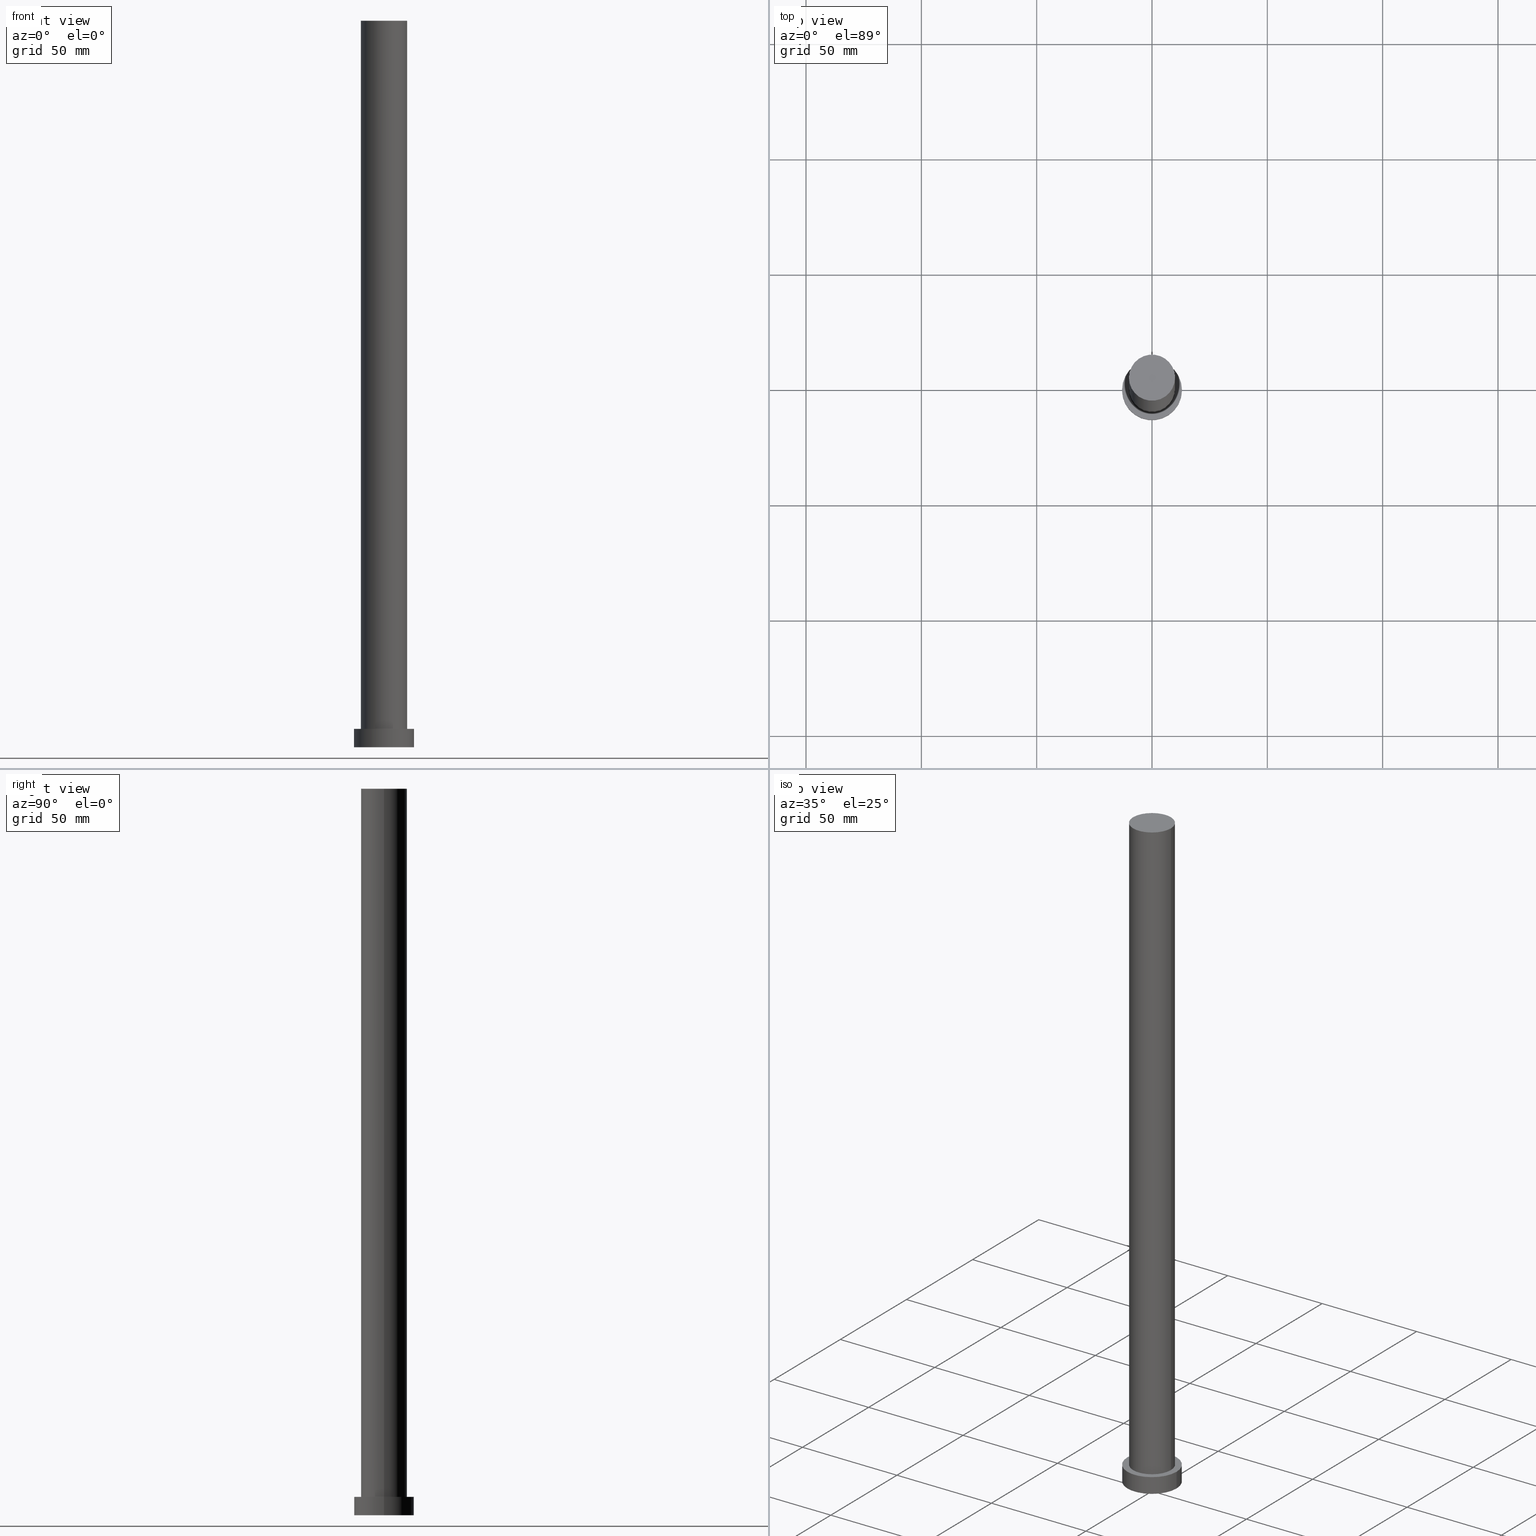
[diagram: canonical four-view strip — front | top / right | iso, engineering-drawing reading convention]
A machine part, canonical four-view strip (front | top / right | iso — engineering-drawing reading convention). The complete STEP part file that produces these views, byte-faithful:
ISO-10303-21;
HEADER;
FILE_DESCRIPTION (( 'STEP AP203' ),
    '1' );
FILE_NAME ('623d.STEP',
    '2023-02-12T10:32:31',
    ( '' ),
    ( '' ),
    'SwSTEP 2.0',
    'SolidWorks 2019',
    '' );
FILE_SCHEMA (( 'CONFIG_CONTROL_DESIGN' ));
ENDSEC;

DATA;
#1 = CARTESIAN_POINT ( 'NONE',  ( 13.00000000000000178, 1.592040838891559293E-15, 8.000000000000000000 ) ) ;
#2 = ORIENTED_EDGE ( 'NONE', *, *, #115, .T. ) ;
#3 = APPROVAL ( #233, 'NEUR�EN�' ) ;
#4 = CARTESIAN_POINT ( 'NONE',  ( 13.00000000000000178, 1.592040838891559293E-15, 0.000000000000000000 ) ) ;
#5 = APPROVAL_ROLE ( '' ) ;
#6 = AXIS2_PLACEMENT_3D ( 'NONE', #205, #218, #31 ) ;
#7 = VERTEX_POINT ( 'NONE', #4 ) ;
#8 = ORIENTED_EDGE ( 'NONE', *, *, #32, .F. ) ;
#9 = VECTOR ( 'NONE', #221, 1000.000000000000000 ) ;
#10 = MANIFOLD_SOLID_BREP ( 'P�idat vysunut�m3', #113 ) ;
#11 = SHAPE_DEFINITION_REPRESENTATION ( #139, #59 ) ;
#12 = CARTESIAN_POINT ( 'NONE',  ( 10.00000000000000000, 1.224646799147353256E-15, 8.000000000000000000 ) ) ;
#13 = CARTESIAN_POINT ( 'NONE',  ( -10.00000000000000000, 0.000000000000000000, 8.000000000000000000 ) ) ;
#14 = CC_DESIGN_APPROVAL ( #87, ( #109 ) ) ;
#15 = DIRECTION ( 'NONE',  ( -0.000000000000000000, -0.000000000000000000, -1.000000000000000000 ) ) ;
#16 = DIRECTION ( 'NONE',  ( 0.000000000000000000, 0.000000000000000000, 1.000000000000000000 ) ) ;
#17 = CIRCLE ( 'NONE', #174, 10.00000000000000000 ) ;
#18 = CYLINDRICAL_SURFACE ( 'NONE', #88, 10.00000000000000000 ) ;
#19 = ADVANCED_FACE ( 'NONE', ( #224 ), #211, .T. ) ;
#20 = CARTESIAN_POINT ( 'NONE',  ( 13.00000000000000178, 1.592040838891559293E-15, 8.000000000000000000 ) ) ;
#21 = CARTESIAN_POINT ( 'NONE',  ( 0.000000000000000000, 0.000000000000000000, 8.000000000000000000 ) ) ;
#22 = APPLICATION_PROTOCOL_DEFINITION ( 'international standard', 'config_control_design', 1994, #133 ) ;
#23 = DIRECTION ( 'NONE',  ( -1.000000000000000000, 0.000000000000000000, 0.000000000000000000 ) ) ;
#24 = PERSON_AND_ORGANIZATION ( #229, #84 ) ;
#25 = EDGE_LOOP ( 'NONE', ( #207, #118 ) ) ;
#26 = PERSON_AND_ORGANIZATION ( #229, #84 ) ;
#27 = PRODUCT_RELATED_PRODUCT_CATEGORY ( 'detail', '', ( #157 ) ) ;
#28 = PERSON_AND_ORGANIZATION_ROLE ( 'design_supplier' ) ;
#29 = PERSON_AND_ORGANIZATION ( #229, #84 ) ;
#30 = DESIGN_CONTEXT ( 'detailed design', #133, 'design' ) ;
#31 = DIRECTION ( 'NONE',  ( 1.000000000000000000, 0.000000000000000000, 0.000000000000000000 ) ) ;
#32 = EDGE_CURVE ( 'NONE', #42, #40, #17, .T. ) ;
#33 = AXIS2_PLACEMENT_3D ( 'NONE', #39, #255, #135 ) ;
#34 = CARTESIAN_POINT ( 'NONE',  ( 0.000000000000000000, 0.000000000000000000, 0.000000000000000000 ) ) ;
#35 = PLANE ( 'NONE',  #215 ) ;
#36 = DIRECTION ( 'NONE',  ( 0.000000000000000000, 0.000000000000000000, 1.000000000000000000 ) ) ;
#37 = COORDINATED_UNIVERSAL_TIME_OFFSET ( 1, 0, .AHEAD. ) ;
#38 = LOCAL_TIME ( 11, 32, 31.00000000000000000, #64 ) ;
#39 = CARTESIAN_POINT ( 'NONE',  ( 0.000000000000000000, 0.000000000000000000, 0.000000000000000000 ) ) ;
#40 = VERTEX_POINT ( 'NONE', #148 ) ;
#41 = DIRECTION ( 'NONE',  ( 0.000000000000000000, 0.000000000000000000, 1.000000000000000000 ) ) ;
#42 = VERTEX_POINT ( 'NONE', #79 ) ;
#43 = DATE_AND_TIME ( #146, #38 ) ;
#44 = ORIENTED_EDGE ( 'NONE', *, *, #151, .T. ) ;
#45 = CC_DESIGN_DATE_AND_TIME_ASSIGNMENT ( #69, #66, ( #109 ) ) ;
#46 = DATE_AND_TIME ( #102, #150 ) ;
#47 = CC_DESIGN_APPROVAL ( #3, ( #248 ) ) ;
#48 = PERSON_AND_ORGANIZATION_ROLE ( 'classification_officer' ) ;
#49 = DIRECTION ( 'NONE',  ( 0.000000000000000000, 0.000000000000000000, 1.000000000000000000 ) ) ;
#50 = ORIENTED_EDGE ( 'NONE', *, *, #190, .F. ) ;
#51 = APPLICATION_PROTOCOL_DEFINITION ( 'international standard', 'config_control_design', 1994, #106 ) ;
#52 = CARTESIAN_POINT ( 'NONE',  ( 0.000000000000000000, 0.000000000000000000, 315.0000000000000000 ) ) ;
#53 = DIRECTION ( 'NONE',  ( 0.000000000000000000, 0.000000000000000000, 1.000000000000000000 ) ) ;
#54 = EDGE_LOOP ( 'NONE', ( #217, #2 ) ) ;
#55 = AXIS2_PLACEMENT_3D ( 'NONE', #223, #16, #92 ) ;
#56 = APPROVAL_PERSON_ORGANIZATION ( #183, #87, #93 ) ;
#57 = CARTESIAN_POINT ( 'NONE',  ( 0.000000000000000000, 0.000000000000000000, 8.000000000000000000 ) ) ;
#58 = APPROVAL ( #228, 'NEUR�EN�' ) ;
#59 = ADVANCED_BREP_SHAPE_REPRESENTATION ( '623d', ( #10, #131 ), #99 ) ;
#60 = CARTESIAN_POINT ( 'NONE',  ( 10.00000000000000000, 1.224646799147353256E-15, 315.0000000000000000 ) ) ;
#61 = DIRECTION ( 'NONE',  ( 1.000000000000000000, 0.000000000000000000, 0.000000000000000000 ) ) ;
#62 = DIRECTION ( 'NONE',  ( 1.000000000000000000, 0.000000000000000000, 0.000000000000000000 ) ) ;
#63 = ORIENTED_EDGE ( 'NONE', *, *, #151, .F. ) ;
#64 = COORDINATED_UNIVERSAL_TIME_OFFSET ( 1, 0, .AHEAD. ) ;
#65 = DIRECTION ( 'NONE',  ( 0.000000000000000000, 0.000000000000000000, 1.000000000000000000 ) ) ;
#66 = DATE_TIME_ROLE ( 'creation_date' ) ;
#67 = VERTEX_POINT ( 'NONE', #204 ) ;
#68 = EDGE_CURVE ( 'NONE', #227, #177, #220, .T. ) ;
#69 = DATE_AND_TIME ( #164, #144 ) ;
#70 = CC_DESIGN_DATE_AND_TIME_ASSIGNMENT ( #46, #170, ( #248 ) ) ;
#71 = DIRECTION ( 'NONE',  ( -1.000000000000000000, 0.000000000000000000, 0.000000000000000000 ) ) ;
#72 = PERSON_AND_ORGANIZATION_ROLE ( 'creator' ) ;
#73 = DIRECTION ( 'NONE',  ( 1.000000000000000000, 0.000000000000000000, -0.000000000000000000 ) ) ;
#74 = AXIS2_PLACEMENT_3D ( 'NONE', #105, #49, #73 ) ;
#75 = ADVANCED_FACE ( 'NONE', ( #182 ), #159, .T. ) ;
#76 = FACE_OUTER_BOUND ( 'NONE', #120, .T. ) ;
#77 = EDGE_LOOP ( 'NONE', ( #98, #172, #162, #225 ) ) ;
#78 = PERSON_AND_ORGANIZATION ( #229, #84 ) ;
#79 = CARTESIAN_POINT ( 'NONE',  ( -10.00000000000000000, 0.000000000000000000, 315.0000000000000000 ) ) ;
#80 = CARTESIAN_POINT ( 'NONE',  ( 0.000000000000000000, 0.000000000000000000, 315.0000000000000000 ) ) ;
#81 = ORIENTED_EDGE ( 'NONE', *, *, #249, .T. ) ;
#82 = AXIS2_PLACEMENT_3D ( 'NONE', #80, #241, #97 ) ;
#83 = EDGE_CURVE ( 'NONE', #237, #7, #184, .T. ) ;
#84 = ORGANIZATION ( 'NEUR�EN�', 'NEUR�EN�', '' ) ;
#85 = LOCAL_TIME ( 11, 32, 31.00000000000000000, #125 ) ;
#86 = PERSON_AND_ORGANIZATION ( #229, #84 ) ;
#87 = APPROVAL ( #240, 'NEUR�EN�' ) ;
#88 = AXIS2_PLACEMENT_3D ( 'NONE', #137, #178, #154 ) ;
#89 = FACE_OUTER_BOUND ( 'NONE', #245, .T. ) ;
#90 = CARTESIAN_POINT ( 'NONE',  ( 0.000000000000000000, 0.000000000000000000, 0.000000000000000000 ) ) ;
#91 = CC_DESIGN_PERSON_AND_ORGANIZATION_ASSIGNMENT ( #24, #72, ( #244 ) ) ;
#92 = DIRECTION ( 'NONE',  ( 1.000000000000000000, 0.000000000000000000, 0.000000000000000000 ) ) ;
#93 = APPROVAL_ROLE ( '' ) ;
#94 = LINE ( 'NONE', #60, #197 ) ;
#95 = DIRECTION ( 'NONE',  ( 1.000000000000000000, 0.000000000000000000, 0.000000000000000000 ) ) ;
#96 = CALENDAR_DATE ( 2023, 12, 2 ) ;
#97 = DIRECTION ( 'NONE',  ( 1.000000000000000000, 0.000000000000000000, -0.000000000000000000 ) ) ;
#98 = ORIENTED_EDGE ( 'NONE', *, *, #115, .F. ) ;
#99 =( GEOMETRIC_REPRESENTATION_CONTEXT ( 3 ) GLOBAL_UNCERTAINTY_ASSIGNED_CONTEXT ( ( #136 ) ) GLOBAL_UNIT_ASSIGNED_CONTEXT ( ( #156, #203, #128 ) ) REPRESENTATION_CONTEXT ( 'NONE', 'WORKASPACE' ) );
#100 = ORIENTED_EDGE ( 'NONE', *, *, #32, .T. ) ;
#101 = CC_DESIGN_PERSON_AND_ORGANIZATION_ASSIGNMENT ( #26, #166, ( #109 ) ) ;
#102 = CALENDAR_DATE ( 2023, 12, 2 ) ;
#103 = SECURITY_CLASSIFICATION_LEVEL ( 'unclassified' ) ;
#104 = CARTESIAN_POINT ( 'NONE',  ( 0.000000000000000000, 0.000000000000000000, 8.000000000000000000 ) ) ;
#105 = CARTESIAN_POINT ( 'NONE',  ( 0.000000000000000000, 0.000000000000000000, 8.000000000000000000 ) ) ;
#106 = APPLICATION_CONTEXT ( 'configuration controlled 3d designs of mechanical parts and assemblies' ) ;
#107 = CIRCLE ( 'NONE', #33, 13.00000000000000178 ) ;
#108 = CARTESIAN_POINT ( 'NONE',  ( -10.00000000000000000, 0.000000000000000000, 315.0000000000000000 ) ) ;
#109 = PRODUCT_DEFINITION ( 'NEZN�M�', '', #244, #30 ) ;
#110 = DIRECTION ( 'NONE',  ( -1.000000000000000000, 0.000000000000000000, 0.000000000000000000 ) ) ;
#111 = DATE_AND_TIME ( #96, #126 ) ;
#112 = EDGE_LOOP ( 'NONE', ( #160, #145, #141, #81 ) ) ;
#113 = CLOSED_SHELL ( 'NONE', ( #232, #167, #19, #213, #161, #121, #75 ) ) ;
#114 = DIRECTION ( 'NONE',  ( -0.000000000000000000, -0.000000000000000000, -1.000000000000000000 ) ) ;
#115 = EDGE_CURVE ( 'NONE', #237, #122, #130, .T. ) ;
#116 = ORIENTED_EDGE ( 'NONE', *, *, #249, .F. ) ;
#117 = PERSON_AND_ORGANIZATION ( #229, #84 ) ;
#118 = ORIENTED_EDGE ( 'NONE', *, *, #158, .F. ) ;
#119 = APPROVAL_DATE_TIME ( #43, #58 ) ;
#120 = EDGE_LOOP ( 'NONE', ( #116, #196 ) ) ;
#121 = ADVANCED_FACE ( 'NONE', ( #180 ), #18, .T. ) ;
#122 = VERTEX_POINT ( 'NONE', #253 ) ;
#123 = VECTOR ( 'NONE', #15, 1000.000000000000000 ) ;
#124 = CC_DESIGN_PERSON_AND_ORGANIZATION_ASSIGNMENT ( #153, #48, ( #248 ) ) ;
#125 = COORDINATED_UNIVERSAL_TIME_OFFSET ( 1, 0, .AHEAD. ) ;
#126 = LOCAL_TIME ( 11, 32, 31.00000000000000000, #37 ) ;
#127 = FACE_OUTER_BOUND ( 'NONE', #54, .T. ) ;
#128 =( NAMED_UNIT ( * ) SI_UNIT ( $, .STERADIAN. ) SOLID_ANGLE_UNIT ( ) );
#129 = EDGE_LOOP ( 'NONE', ( #100, #132 ) ) ;
#130 = CIRCLE ( 'NONE', #55, 13.00000000000000178 ) ;
#131 = AXIS2_PLACEMENT_3D ( 'NONE', #214, #222, #140 ) ;
#132 = ORIENTED_EDGE ( 'NONE', *, *, #242, .T. ) ;
#133 = APPLICATION_CONTEXT ( 'configuration controlled 3d designs of mechanical parts and assemblies' ) ;
#134 = DIRECTION ( 'NONE',  ( -0.000000000000000000, -0.000000000000000000, -1.000000000000000000 ) ) ;
#135 = DIRECTION ( 'NONE',  ( 1.000000000000000000, 0.000000000000000000, 0.000000000000000000 ) ) ;
#136 = UNCERTAINTY_MEASURE_WITH_UNIT (LENGTH_MEASURE( 1.000000000000000082E-05 ), #156, 'distance_accuracy_value', 'NONE');
#137 = CARTESIAN_POINT ( 'NONE',  ( 0.000000000000000000, 0.000000000000000000, 315.0000000000000000 ) ) ;
#138 = CC_DESIGN_PERSON_AND_ORGANIZATION_ASSIGNMENT ( #78, #206, ( #157 ) ) ;
#139 = PRODUCT_DEFINITION_SHAPE ( 'NONE', 'NONE',  #109 ) ;
#140 = DIRECTION ( 'NONE',  ( 1.000000000000000000, 0.000000000000000000, 0.000000000000000000 ) ) ;
#141 = ORIENTED_EDGE ( 'NONE', *, *, #169, .T. ) ;
#142 = CIRCLE ( 'NONE', #173, 10.00000000000000000 ) ;
#143 = CIRCLE ( 'NONE', #187, 13.00000000000000178 ) ;
#144 = LOCAL_TIME ( 11, 32, 31.00000000000000000, #185 ) ;
#145 = ORIENTED_EDGE ( 'NONE', *, *, #236, .F. ) ;
#146 = CALENDAR_DATE ( 2023, 12, 2 ) ;
#147 = EDGE_CURVE ( 'NONE', #7, #67, #191, .T. ) ;
#148 = CARTESIAN_POINT ( 'NONE',  ( 10.00000000000000000, 1.224646799147353256E-15, 315.0000000000000000 ) ) ;
#149 = LINE ( 'NONE', #163, #230 ) ;
#150 = LOCAL_TIME ( 11, 32, 31.00000000000000000, #168 ) ;
#151 = EDGE_CURVE ( 'NONE', #40, #177, #94, .T. ) ;
#152 = DATE_AND_TIME ( #250, #85 ) ;
#153 = PERSON_AND_ORGANIZATION ( #229, #84 ) ;
#154 = DIRECTION ( 'NONE',  ( -1.000000000000000000, 0.000000000000000000, 0.000000000000000000 ) ) ;
#155 = DIRECTION ( 'NONE',  ( 1.000000000000000000, 0.000000000000000000, 0.000000000000000000 ) ) ;
#156 =( LENGTH_UNIT ( ) NAMED_UNIT ( * ) SI_UNIT ( .MILLI., .METRE. ) );
#157 = PRODUCT ( '623d', '623d', '', ( #179 ) ) ;
#158 = EDGE_CURVE ( 'NONE', #177, #227, #192, .T. ) ;
#159 = PLANE ( 'NONE',  #82 ) ;
#160 = ORIENTED_EDGE ( 'NONE', *, *, #83, .F. ) ;
#161 = ADVANCED_FACE ( 'NONE', ( #76 ), #35, .F. ) ;
#162 = ORIENTED_EDGE ( 'NONE', *, *, #147, .T. ) ;
#163 = CARTESIAN_POINT ( 'NONE',  ( -13.00000000000000178, 0.000000000000000000, 8.000000000000000000 ) ) ;
#164 = CALENDAR_DATE ( 2023, 12, 2 ) ;
#165 = CARTESIAN_POINT ( 'NONE',  ( 0.000000000000000000, 0.000000000000000000, 315.0000000000000000 ) ) ;
#166 = PERSON_AND_ORGANIZATION_ROLE ( 'creator' ) ;
#167 = ADVANCED_FACE ( 'NONE', ( #175 ), #235, .T. ) ;
#168 = COORDINATED_UNIVERSAL_TIME_OFFSET ( 1, 0, .AHEAD. ) ;
#169 = EDGE_CURVE ( 'NONE', #122, #67, #149, .T. ) ;
#170 = DATE_TIME_ROLE ( 'classification_date' ) ;
#171 = CYLINDRICAL_SURFACE ( 'NONE', #252, 10.00000000000000000 ) ;
#172 = ORIENTED_EDGE ( 'NONE', *, *, #83, .T. ) ;
#173 = AXIS2_PLACEMENT_3D ( 'NONE', #200, #41, #61 ) ;
#174 = AXIS2_PLACEMENT_3D ( 'NONE', #165, #247, #188 ) ;
#175 = FACE_OUTER_BOUND ( 'NONE', #77, .T. ) ;
#176 = CC_DESIGN_SECURITY_CLASSIFICATION ( #248, ( #244 ) ) ;
#177 = VERTEX_POINT ( 'NONE', #12 ) ;
#178 = DIRECTION ( 'NONE',  ( -0.000000000000000000, -0.000000000000000000, -1.000000000000000000 ) ) ;
#179 = MECHANICAL_CONTEXT ( 'NONE', #106, 'mechanical' ) ;
#180 = FACE_OUTER_BOUND ( 'NONE', #209, .T. ) ;
#181 = CC_DESIGN_APPROVAL ( #58, ( #244 ) ) ;
#182 = FACE_OUTER_BOUND ( 'NONE', #129, .T. ) ;
#183 = PERSON_AND_ORGANIZATION ( #229, #84 ) ;
#184 = LINE ( 'NONE', #1, #9 ) ;
#185 = COORDINATED_UNIVERSAL_TIME_OFFSET ( 1, 0, .AHEAD. ) ;
#186 = CARTESIAN_POINT ( 'NONE',  ( 0.000000000000000000, 0.000000000000000000, 8.000000000000000000 ) ) ;
#187 = AXIS2_PLACEMENT_3D ( 'NONE', #104, #53, #62 ) ;
#188 = DIRECTION ( 'NONE',  ( 1.000000000000000000, 0.000000000000000000, 0.000000000000000000 ) ) ;
#189 = DIRECTION ( 'NONE',  ( -0.000000000000000000, -0.000000000000000000, -1.000000000000000000 ) ) ;
#190 = EDGE_CURVE ( 'NONE', #42, #227, #194, .T. ) ;
#191 = CIRCLE ( 'NONE', #243, 13.00000000000000178 ) ;
#192 = CIRCLE ( 'NONE', #6, 10.00000000000000000 ) ;
#193 = APPROVAL_DATE_TIME ( #152, #3 ) ;
#194 = LINE ( 'NONE', #108, #123 ) ;
#195 = APPROVAL_ROLE ( '' ) ;
#196 = ORIENTED_EDGE ( 'NONE', *, *, #147, .F. ) ;
#197 = VECTOR ( 'NONE', #114, 1000.000000000000000 ) ;
#198 = DIRECTION ( 'NONE',  ( 0.000000000000000000, 0.000000000000000000, 1.000000000000000000 ) ) ;
#199 = DIRECTION ( 'NONE',  ( -0.000000000000000000, -0.000000000000000000, -1.000000000000000000 ) ) ;
#200 = CARTESIAN_POINT ( 'NONE',  ( 0.000000000000000000, 0.000000000000000000, 315.0000000000000000 ) ) ;
#201 = APPROVAL_DATE_TIME ( #111, #87 ) ;
#202 = AXIS2_PLACEMENT_3D ( 'NONE', #21, #65, #95 ) ;
#203 =( NAMED_UNIT ( * ) PLANE_ANGLE_UNIT ( ) SI_UNIT ( $, .RADIAN. ) );
#204 = CARTESIAN_POINT ( 'NONE',  ( -13.00000000000000178, 0.000000000000000000, 0.000000000000000000 ) ) ;
#205 = CARTESIAN_POINT ( 'NONE',  ( 0.000000000000000000, 0.000000000000000000, 8.000000000000000000 ) ) ;
#206 = PERSON_AND_ORGANIZATION_ROLE ( 'design_owner' ) ;
#207 = ORIENTED_EDGE ( 'NONE', *, *, #68, .F. ) ;
#208 = DIRECTION ( 'NONE',  ( -0.000000000000000000, -0.000000000000000000, -1.000000000000000000 ) ) ;
#209 = EDGE_LOOP ( 'NONE', ( #63, #8, #226, #251 ) ) ;
#210 = APPROVAL_PERSON_ORGANIZATION ( #117, #58, #5 ) ;
#211 = CYLINDRICAL_SURFACE ( 'NONE', #212, 13.00000000000000178 ) ;
#212 = AXIS2_PLACEMENT_3D ( 'NONE', #186, #208, #23 ) ;
#213 = ADVANCED_FACE ( 'NONE', ( #231, #127 ), #234, .T. ) ;
#214 = CARTESIAN_POINT ( 'NONE',  ( 0.000000000000000000, 0.000000000000000000, 0.000000000000000000 ) ) ;
#215 = AXIS2_PLACEMENT_3D ( 'NONE', #34, #198, #239 ) ;
#216 = APPROVAL_PERSON_ORGANIZATION ( #86, #3, #195 ) ;
#217 = ORIENTED_EDGE ( 'NONE', *, *, #236, .T. ) ;
#218 = DIRECTION ( 'NONE',  ( 0.000000000000000000, 0.000000000000000000, 1.000000000000000000 ) ) ;
#219 = ORIENTED_EDGE ( 'NONE', *, *, #158, .T. ) ;
#220 = CIRCLE ( 'NONE', #202, 10.00000000000000000 ) ;
#221 = DIRECTION ( 'NONE',  ( -0.000000000000000000, -0.000000000000000000, -1.000000000000000000 ) ) ;
#222 = DIRECTION ( 'NONE',  ( 0.000000000000000000, 0.000000000000000000, 1.000000000000000000 ) ) ;
#223 = CARTESIAN_POINT ( 'NONE',  ( 0.000000000000000000, 0.000000000000000000, 8.000000000000000000 ) ) ;
#224 = FACE_OUTER_BOUND ( 'NONE', #112, .T. ) ;
#225 = ORIENTED_EDGE ( 'NONE', *, *, #169, .F. ) ;
#226 = ORIENTED_EDGE ( 'NONE', *, *, #190, .T. ) ;
#227 = VERTEX_POINT ( 'NONE', #13 ) ;
#228 = APPROVAL_STATUS ( 'not_yet_approved' ) ;
#229 = PERSON ( 'NEUR�EN�', 'NEUR�EN�', 'NEUR�EN�', ('NEUR�EN�'), ('NEUR�EN�'), ('NEUR�EN�') ) ;
#230 = VECTOR ( 'NONE', #189, 1000.000000000000000 ) ;
#231 = FACE_BOUND ( 'NONE', #25, .T. ) ;
#232 = ADVANCED_FACE ( 'NONE', ( #89 ), #171, .T. ) ;
#233 = APPROVAL_STATUS ( 'not_yet_approved' ) ;
#234 = PLANE ( 'NONE',  #74 ) ;
#235 = CYLINDRICAL_SURFACE ( 'NONE', #238, 13.00000000000000178 ) ;
#236 = EDGE_CURVE ( 'NONE', #122, #237, #143, .T. ) ;
#237 = VERTEX_POINT ( 'NONE', #20 ) ;
#238 = AXIS2_PLACEMENT_3D ( 'NONE', #57, #134, #110 ) ;
#239 = DIRECTION ( 'NONE',  ( 1.000000000000000000, 0.000000000000000000, -0.000000000000000000 ) ) ;
#240 = APPROVAL_STATUS ( 'not_yet_approved' ) ;
#241 = DIRECTION ( 'NONE',  ( 0.000000000000000000, 0.000000000000000000, 1.000000000000000000 ) ) ;
#242 = EDGE_CURVE ( 'NONE', #40, #42, #142, .T. ) ;
#243 = AXIS2_PLACEMENT_3D ( 'NONE', #90, #36, #155 ) ;
#244 = PRODUCT_DEFINITION_FORMATION_WITH_SPECIFIED_SOURCE ( 'LIBOVOLN�', '', #157, .NOT_KNOWN. ) ;
#245 = EDGE_LOOP ( 'NONE', ( #254, #44, #219, #50 ) ) ;
#246 = CC_DESIGN_PERSON_AND_ORGANIZATION_ASSIGNMENT ( #29, #28, ( #244 ) ) ;
#247 = DIRECTION ( 'NONE',  ( 0.000000000000000000, 0.000000000000000000, 1.000000000000000000 ) ) ;
#248 = SECURITY_CLASSIFICATION ( '', '', #103 ) ;
#249 = EDGE_CURVE ( 'NONE', #67, #7, #107, .T. ) ;
#250 = CALENDAR_DATE ( 2023, 12, 2 ) ;
#251 = ORIENTED_EDGE ( 'NONE', *, *, #68, .T. ) ;
#252 = AXIS2_PLACEMENT_3D ( 'NONE', #52, #199, #71 ) ;
#253 = CARTESIAN_POINT ( 'NONE',  ( -13.00000000000000178, 0.000000000000000000, 8.000000000000000000 ) ) ;
#254 = ORIENTED_EDGE ( 'NONE', *, *, #242, .F. ) ;
#255 = DIRECTION ( 'NONE',  ( 0.000000000000000000, 0.000000000000000000, 1.000000000000000000 ) ) ;
ENDSEC;
END-ISO-10303-21;
